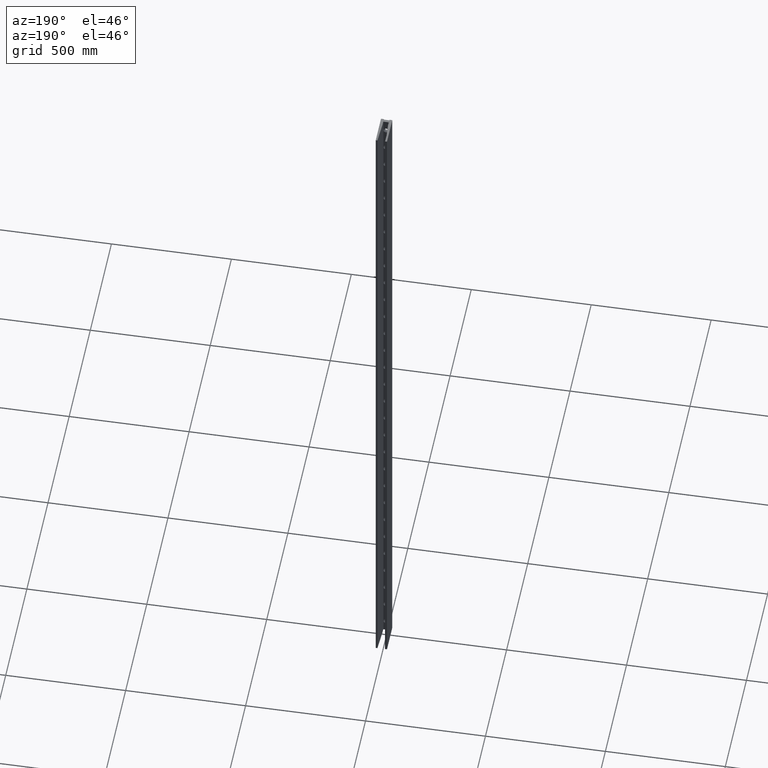
[diagram: clean part render]
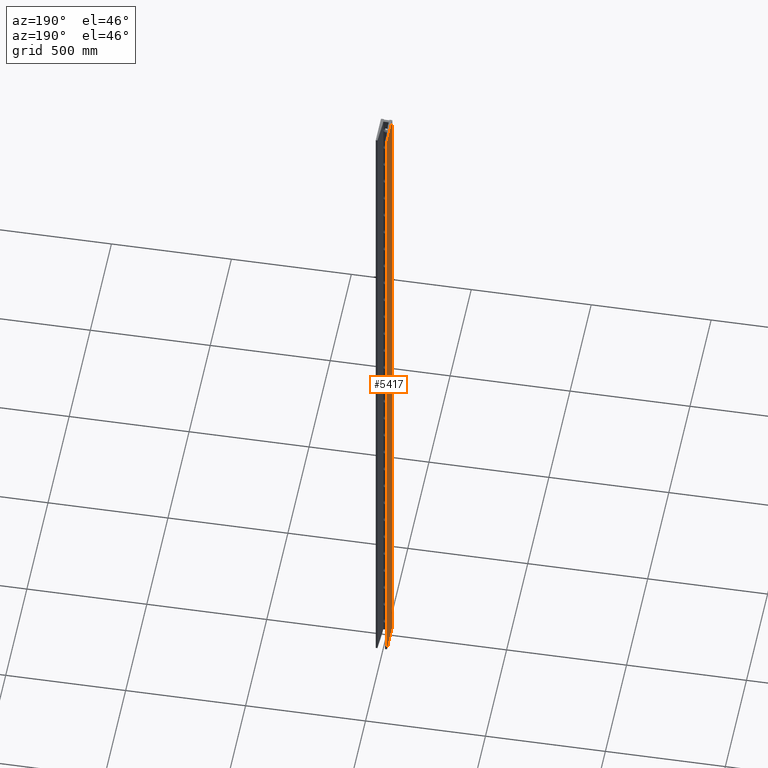
[diagram: same view with one face highlighted and labeled with its STEP entity id]
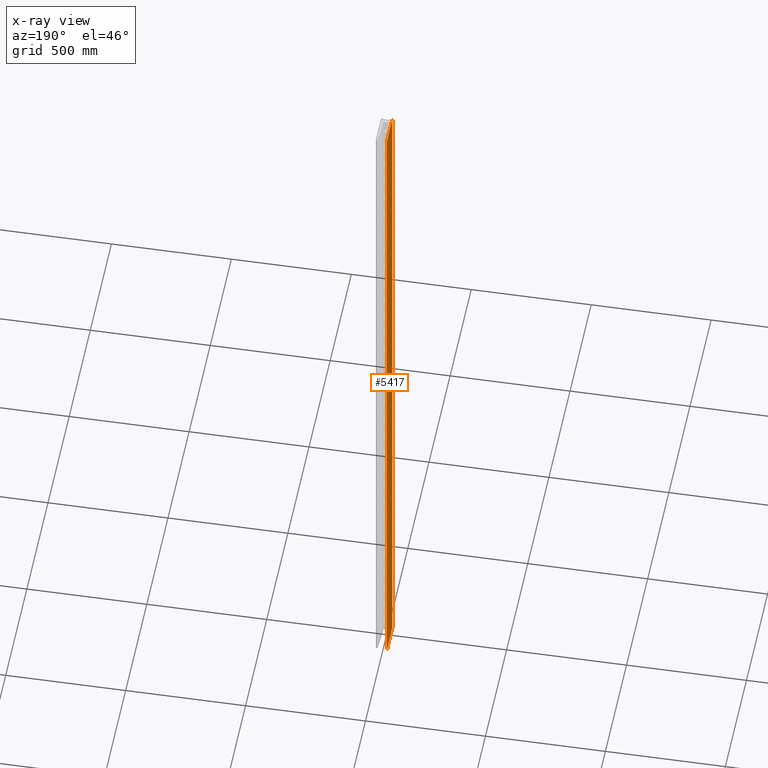
[diagram: x-ray of the same camera — body ghosted, the highlighted face saturated]
A machine part, auxiliary view. The second image highlights one B-rep face of the part: STEP entity #5417.
The next image is the same camera in x-ray: the body ghosted, the highlighted face saturated — about 0% of this face is hidden behind the body in this view.
In plain terms, the highlighted planar face has unit normal (1, 0, -0).
Its self-contained STEP definition (entity closure, byte-faithful):
#52 = CARTESIAN_POINT ( 'NONE',  ( -23.50000000000000000, -8.538638580944036700E-022, 1500.000000000000000 ) ) ;
#300 = ORIENTED_EDGE ( 'NONE', *, *, #2166, .T. ) ;
#856 = DIRECTION ( 'NONE',  ( -1.119176436114069100E-016, 1.000000000000000000, 0.0000000000000000000 ) ) ;
#2166 = EDGE_CURVE ( 'NONE', #13608, #15195, #14058, .T. ) ;
#2407 = PLANE ( 'NONE',  #12916 ) ;
#2478 = DIRECTION ( 'NONE',  ( 1.000000000000000000, 1.119176436114069100E-016, -0.0000000000000000000 ) ) ;
#2516 = LINE ( 'NONE', #6750, #21244 ) ;
#4230 = ORIENTED_EDGE ( 'NONE', *, *, #19951, .F. ) ;
#5417 = ADVANCED_FACE ( 'NONE', ( #9320 ), #2407, .F. ) ;
#6750 = CARTESIAN_POINT ( 'NONE',  ( -23.50000000000000000, -8.538638580944036700E-022, 1500.000000000000000 ) ) ;
#8014 = CARTESIAN_POINT ( 'NONE',  ( -23.50000000000001400, 124.0000000000000000, -1500.000000000000000 ) ) ;
#8107 = ORIENTED_EDGE ( 'NONE', *, *, #15260, .T. ) ;
#8586 = VERTEX_POINT ( 'NONE', #14296 ) ;
#9320 = FACE_OUTER_BOUND ( 'NONE', #13302, .T. ) ;
#9337 = CARTESIAN_POINT ( 'NONE',  ( -23.50000000000000000, -2.630064624868062200E-015, 1500.000000000000000 ) ) ;
#9375 = VERTEX_POINT ( 'NONE', #52 ) ;
#10202 = DIRECTION ( 'NONE',  ( -0.0000000000000000000, -0.0000000000000000000, -1.000000000000000000 ) ) ;
#10855 = EDGE_CURVE ( 'NONE', #8586, #9375, #16601, .T. ) ;
#11901 = VECTOR ( 'NONE', #19179, 1000.000000000000000 ) ;
#12916 = AXIS2_PLACEMENT_3D ( 'NONE', #9337, #2478, #856 ) ;
#13124 = CARTESIAN_POINT ( 'NONE',  ( -23.50000000000001400, 124.0000000000000000, 1500.000000000000000 ) ) ;
#13302 = EDGE_LOOP ( 'NONE', ( #300, #4230, #22547, #8107 ) ) ;
#13608 = VERTEX_POINT ( 'NONE', #8014 ) ;
#13710 = VECTOR ( 'NONE', #20370, 1000.000000000000000 ) ;
#14058 = LINE ( 'NONE', #17828, #20402 ) ;
#14296 = CARTESIAN_POINT ( 'NONE',  ( -23.50000000000001400, 124.0000000000000000, 1500.000000000000000 ) ) ;
#15195 = VERTEX_POINT ( 'NONE', #19926 ) ;
#15260 = EDGE_CURVE ( 'NONE', #8586, #13608, #20615, .T. ) ;
#16601 = LINE ( 'NONE', #22623, #11901 ) ;
#17828 = CARTESIAN_POINT ( 'NONE',  ( -23.50000000000000000, -2.630064624868062200E-015, -1500.000000000000000 ) ) ;
#17912 = DIRECTION ( 'NONE',  ( 1.119176436114069100E-016, -1.000000000000000000, 0.0000000000000000000 ) ) ;
#19179 = DIRECTION ( 'NONE',  ( 1.119176436114069100E-016, -1.000000000000000000, 0.0000000000000000000 ) ) ;
#19926 = CARTESIAN_POINT ( 'NONE',  ( -23.50000000000000000, -8.538638580944036700E-022, -1500.000000000000000 ) ) ;
#19951 = EDGE_CURVE ( 'NONE', #9375, #15195, #2516, .T. ) ;
#20370 = DIRECTION ( 'NONE',  ( -0.0000000000000000000, -0.0000000000000000000, -1.000000000000000000 ) ) ;
#20402 = VECTOR ( 'NONE', #17912, 1000.000000000000000 ) ;
#20615 = LINE ( 'NONE', #13124, #13710 ) ;
#21244 = VECTOR ( 'NONE', #10202, 1000.000000000000000 ) ;
#22547 = ORIENTED_EDGE ( 'NONE', *, *, #10855, .F. ) ;
#22623 = CARTESIAN_POINT ( 'NONE',  ( -23.50000000000000000, -2.630064624868062200E-015, 1500.000000000000000 ) ) ;